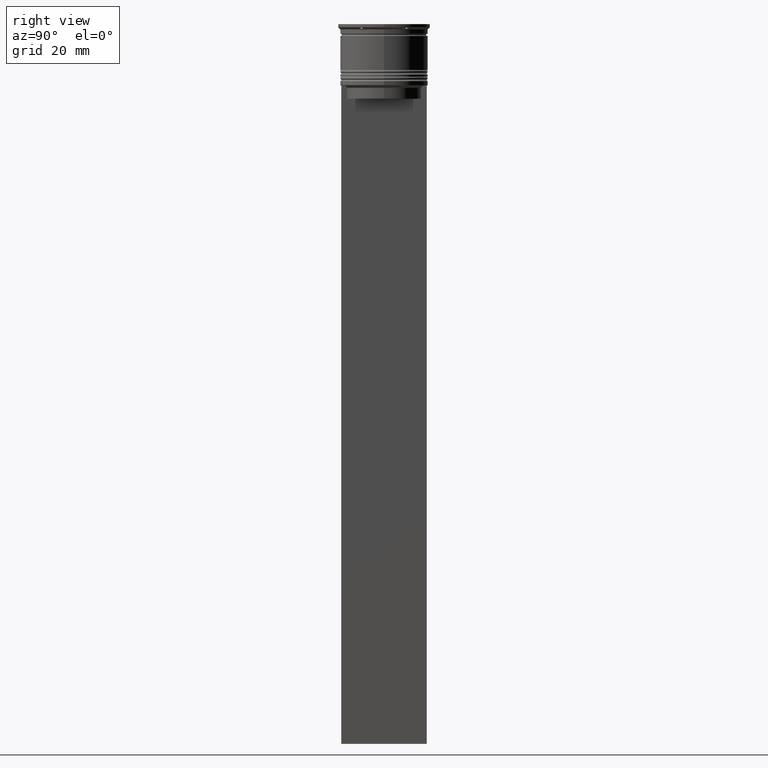
[diagram: clean part render]
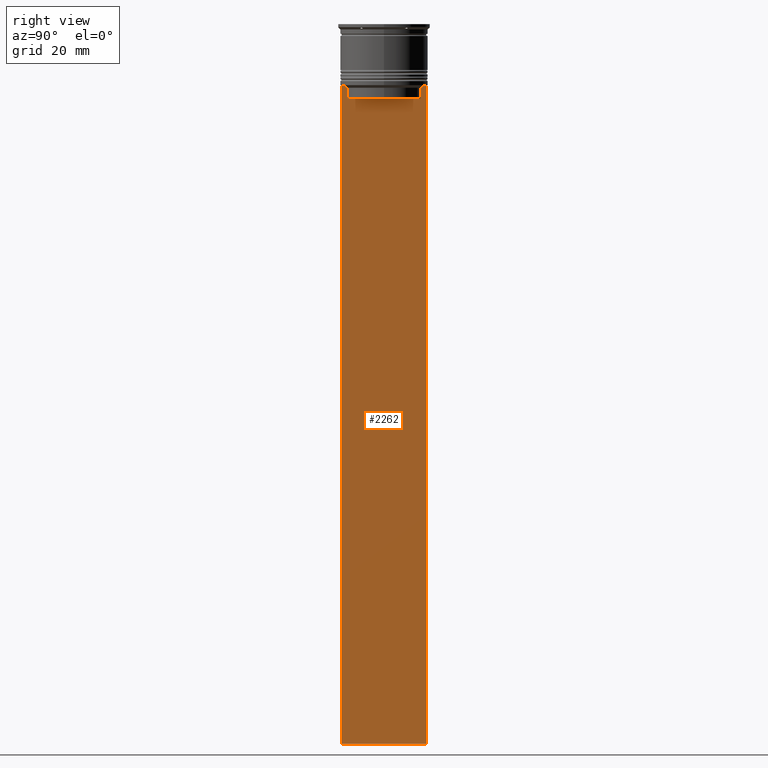
[diagram: same view with one face highlighted and labeled with its STEP entity id]
A machine part, right view. The second image highlights one B-rep face of the part: STEP entity #2262.
In plain terms, the highlighted planar face has unit normal (-1, 0, 0).
Its self-contained STEP definition (entity closure, byte-faithful):
#19 = LINE ( 'NONE', #1601, #882 ) ;
#57 = EDGE_CURVE ( 'NONE', #933, #2326, #2420, .T. ) ;
#82 = VERTEX_POINT ( 'NONE', #802 ) ;
#84 = B_SPLINE_CURVE_WITH_KNOTS ( 'NONE', 3,
 ( #1574, #2226, #826, #1000 ),
 .UNSPECIFIED., .F., .F.,
 ( 4, 4 ),
 ( 0.03898465126933130243, 0.03969388910599658260 ),
 .UNSPECIFIED. ) ;
#97 = EDGE_CURVE ( 'NONE', #596, #1041, #84, .T. ) ;
#124 = CARTESIAN_POINT ( 'NONE',  ( 0.4999999999999998890, -8.885943956609230199, -14.00000000000000178 ) ) ;
#166 = VERTEX_POINT ( 'NONE', #482 ) ;
#207 = CARTESIAN_POINT ( 'NONE',  ( 0.4999999999999998890, 9.750000000000001776, -14.00000000000000178 ) ) ;
#369 = VECTOR ( 'NONE', #622, 1000.000000000000000 ) ;
#393 = CARTESIAN_POINT ( 'NONE',  ( 0.4999999999999998890, 9.750000000000001776, 5.525624189766635830 ) ) ;
#452 = EDGE_CURVE ( 'NONE', #1330, #1167, #1807, .T. ) ;
#482 = CARTESIAN_POINT ( 'NONE',  ( 0.4999999999999998890, -9.749999999999998224, -163.9999999999999716 ) ) ;
#489 = CARTESIAN_POINT ( 'NONE',  ( 0.4999999999999998890, -8.385105843100616241, -14.50000000000000000 ) ) ;
#499 = CARTESIAN_POINT ( 'NONE',  ( 0.4999999999999998890, -9.749999999999998224, -14.00000000000000178 ) ) ;
#549 = ORIENTED_EDGE ( 'NONE', *, *, #1732, .T. ) ;
#582 = CARTESIAN_POINT ( 'NONE',  ( 0.4999999999999998890, -9.749999999999998224, -163.9999999999999716 ) ) ;
#596 = VERTEX_POINT ( 'NONE', #489 ) ;
#621 = EDGE_CURVE ( 'NONE', #666, #82, #1388, .T. ) ;
#622 = DIRECTION ( 'NONE',  ( 0.000000000000000000, -1.000000000000000000, 0.000000000000000000 ) ) ;
#666 = VERTEX_POINT ( 'NONE', #1511 ) ;
#722 = ORIENTED_EDGE ( 'NONE', *, *, #57, .T. ) ;
#777 = LINE ( 'NONE', #820, #369 ) ;
#790 = CARTESIAN_POINT ( 'NONE',  ( 0.4999999999999998890, -8.385105843100616241, 0.000000000000000000 ) ) ;
#802 = CARTESIAN_POINT ( 'NONE',  ( 0.4999999999999998890, 8.385105843100616241, -14.50000000000000000 ) ) ;
#820 = CARTESIAN_POINT ( 'NONE',  ( 0.4999999999999998890, -9.749999999999998224, -14.00000000000000178 ) ) ;
#826 = CARTESIAN_POINT ( 'NONE',  ( 0.4999999999999998890, -8.719005764482787413, -14.16667454151160044 ) ) ;
#843 = DIRECTION ( 'NONE',  ( 0.000000000000000000, 0.000000000000000000, 1.000000000000000000 ) ) ;
#882 = VECTOR ( 'NONE', #1417, 1000.000000000000000 ) ;
#886 = VECTOR ( 'NONE', #2198, 1000.000000000000000 ) ;
#887 = ORIENTED_EDGE ( 'NONE', *, *, #952, .T. ) ;
#933 = VERTEX_POINT ( 'NONE', #1213 ) ;
#952 = EDGE_CURVE ( 'NONE', #1330, #666, #19, .T. ) ;
#971 = VECTOR ( 'NONE', #1588, 1000.000000000000000 ) ;
#985 = LINE ( 'NONE', #582, #971 ) ;
#997 = DIRECTION ( 'NONE',  ( 0.000000000000000000, 0.000000000000000000, -1.000000000000000000 ) ) ;
#1000 = CARTESIAN_POINT ( 'NONE',  ( 0.4999999999999998890, -8.885943956609230199, -14.00000000000000178 ) ) ;
#1013 = ORIENTED_EDGE ( 'NONE', *, *, #452, .F. ) ;
#1041 = VERTEX_POINT ( 'NONE', #124 ) ;
#1045 = CARTESIAN_POINT ( 'NONE',  ( 0.4999999999999998890, -8.385105843100616241, -17.00000000000000000 ) ) ;
#1049 = EDGE_CURVE ( 'NONE', #1068, #166, #1306, .T. ) ;
#1061 = CARTESIAN_POINT ( 'NONE',  ( 0.4999999999999998890, 8.552060201981378285, -14.33334167021640582 ) ) ;
#1062 = FACE_OUTER_BOUND ( 'NONE', #1422, .T. ) ;
#1068 = VERTEX_POINT ( 'NONE', #499 ) ;
#1106 = ORIENTED_EDGE ( 'NONE', *, *, #1049, .T. ) ;
#1108 = ORIENTED_EDGE ( 'NONE', *, *, #621, .T. ) ;
#1124 = CARTESIAN_POINT ( 'NONE',  ( 0.4999999999999998890, 9.750000000000001776, -163.9999999999999716 ) ) ;
#1167 = VERTEX_POINT ( 'NONE', #1124 ) ;
#1190 = VECTOR ( 'NONE', #1922, 1000.000000000000000 ) ;
#1198 = DIRECTION ( 'NONE',  ( 0.000000000000000000, -1.000000000000000000, 0.000000000000000000 ) ) ;
#1213 = CARTESIAN_POINT ( 'NONE',  ( 0.4999999999999998890, 8.385105843100616241, -17.00000000000000000 ) ) ;
#1225 = VECTOR ( 'NONE', #997, 1000.000000000000000 ) ;
#1298 = CARTESIAN_POINT ( 'NONE',  ( 0.4999999999999998890, 8.885943956609230199, -14.00000000000000178 ) ) ;
#1306 = LINE ( 'NONE', #2483, #1514 ) ;
#1327 = LINE ( 'NONE', #1736, #1190 ) ;
#1330 = VERTEX_POINT ( 'NONE', #207 ) ;
#1351 = VECTOR ( 'NONE', #1198, 1000.000000000000000 ) ;
#1388 = B_SPLINE_CURVE_WITH_KNOTS ( 'NONE', 3,
 ( #1298, #1691, #1061, #2299 ),
 .UNSPECIFIED., .F., .F.,
 ( 4, 4 ),
 ( 0.01511546479386908018, 0.01582316445439079997 ),
 .UNSPECIFIED. ) ;
#1417 = DIRECTION ( 'NONE',  ( 0.000000000000000000, -1.000000000000000000, 0.000000000000000000 ) ) ;
#1422 = EDGE_LOOP ( 'NONE', ( #887, #1108, #2412, #722, #549, #2080, #1435, #1106, #2563, #1013 ) ) ;
#1435 = ORIENTED_EDGE ( 'NONE', *, *, #2140, .T. ) ;
#1511 = CARTESIAN_POINT ( 'NONE',  ( 0.4999999999999998890, 8.885943956609230199, -14.00000000000000178 ) ) ;
#1514 = VECTOR ( 'NONE', #1891, 1000.000000000000000 ) ;
#1521 = AXIS2_PLACEMENT_3D ( 'NONE', #1626, #2276, #843 ) ;
#1574 = CARTESIAN_POINT ( 'NONE',  ( 0.4999999999999998890, -8.385105843100616241, -14.50000000000000000 ) ) ;
#1588 = DIRECTION ( 'NONE',  ( 0.000000000000000000, 1.000000000000000000, 0.000000000000000000 ) ) ;
#1601 = CARTESIAN_POINT ( 'NONE',  ( 0.4999999999999998890, -9.749999999999998224, -14.00000000000000178 ) ) ;
#1626 = CARTESIAN_POINT ( 'NONE',  ( 0.4999999999999998890, -9.749999999999998224, 5.525624189766635830 ) ) ;
#1691 = CARTESIAN_POINT ( 'NONE',  ( 0.4999999999999998890, 8.719005771582347464, -14.16667453442325453 ) ) ;
#1732 = EDGE_CURVE ( 'NONE', #2326, #596, #2431, .T. ) ;
#1736 = CARTESIAN_POINT ( 'NONE',  ( 0.4999999999999998890, 8.385105843100616241, 0.000000000000000000 ) ) ;
#1807 = LINE ( 'NONE', #393, #1225 ) ;
#1891 = DIRECTION ( 'NONE',  ( 0.000000000000000000, 0.000000000000000000, -1.000000000000000000 ) ) ;
#1922 = DIRECTION ( 'NONE',  ( 0.000000000000000000, 0.000000000000000000, -1.000000000000000000 ) ) ;
#1986 = CARTESIAN_POINT ( 'NONE',  ( 0.4999999999999998890, 8.400000000000003908, -17.00000000000000000 ) ) ;
#2080 = ORIENTED_EDGE ( 'NONE', *, *, #97, .T. ) ;
#2140 = EDGE_CURVE ( 'NONE', #1041, #1068, #777, .T. ) ;
#2198 = DIRECTION ( 'NONE',  ( -0.000000000000000000, -0.000000000000000000, 1.000000000000000000 ) ) ;
#2226 = CARTESIAN_POINT ( 'NONE',  ( 0.4999999999999998890, -8.552060194457768105, -14.33334167772667556 ) ) ;
#2235 = EDGE_CURVE ( 'NONE', #166, #1167, #985, .T. ) ;
#2262 = ADVANCED_FACE ( 'NONE', ( #1062 ), #2264, .F. ) ;
#2264 = PLANE ( 'NONE',  #1521 ) ;
#2276 = DIRECTION ( 'NONE',  ( -1.000000000000000000, 0.000000000000000000, 0.000000000000000000 ) ) ;
#2299 = CARTESIAN_POINT ( 'NONE',  ( 0.4999999999999998890, 8.385105843100616241, -14.50000000000000000 ) ) ;
#2326 = VERTEX_POINT ( 'NONE', #1045 ) ;
#2412 = ORIENTED_EDGE ( 'NONE', *, *, #2492, .T. ) ;
#2420 = LINE ( 'NONE', #1986, #1351 ) ;
#2431 = LINE ( 'NONE', #790, #886 ) ;
#2483 = CARTESIAN_POINT ( 'NONE',  ( 0.4999999999999998890, -9.749999999999998224, 5.525624189766635830 ) ) ;
#2492 = EDGE_CURVE ( 'NONE', #82, #933, #1327, .T. ) ;
#2563 = ORIENTED_EDGE ( 'NONE', *, *, #2235, .T. ) ;